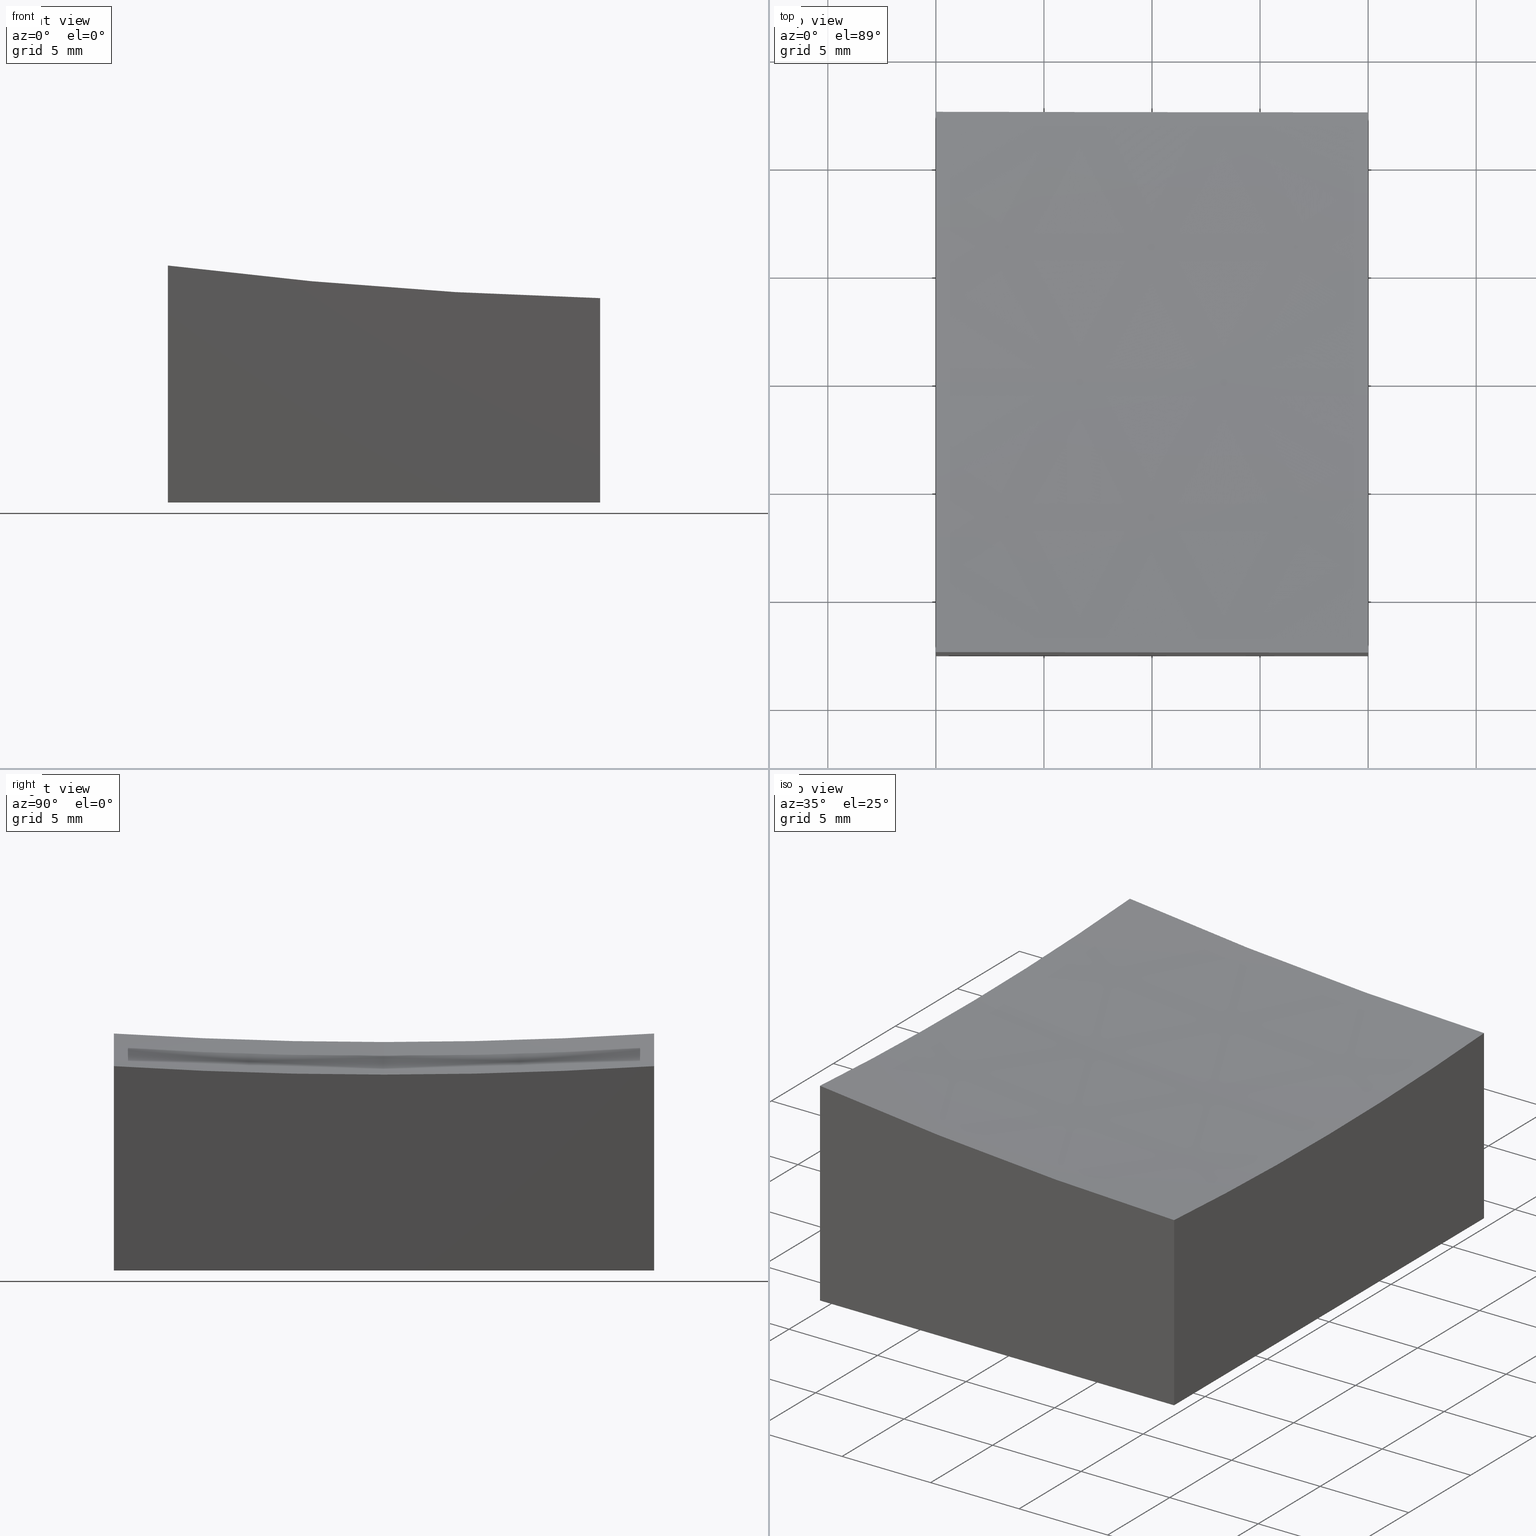
[diagram: canonical four-view strip — front | top / right | iso, engineering-drawing reading convention]
A machine part, canonical four-view strip (front | top / right | iso — engineering-drawing reading convention). The complete STEP part file that produces these views, byte-faithful:
ISO-10303-21;
HEADER;
FILE_DESCRIPTION (( 'STEP AP203' ),
    '1' );
FILE_NAME ('270645.step',
    '2024-12-24T02:22:06',
    ( '' ),
    ( '' ),
    'SwSTEP 2.0',
    'SolidWorks 2020',
    '' );
FILE_SCHEMA (( 'CONFIG_CONTROL_DESIGN' ));
ENDSEC;

DATA;
#1 = APPROVAL ( #115, 'δָ��' ) ;
#2 = DATE_AND_TIME ( #134, #228 ) ;
#3 = DATE_AND_TIME ( #27, #17 ) ;
#4 = DIRECTION ( 'NONE',  ( 0.000000000000000000, -0.000000000000000000, 1.000000000000000000 ) ) ;
#5 = AXIS2_PLACEMENT_3D ( 'NONE', #67, #221, #7 ) ;
#6 = CARTESIAN_POINT ( 'NONE',  ( 15.00000000000002665, 0.000000000000000000, 199.0000000000000000 ) ) ;
#7 = DIRECTION ( 'NONE',  ( 1.000000000000000000, 1.224646799147353207E-16, 0.000000000000000000 ) ) ;
#8 =( NAMED_UNIT ( * ) PLANE_ANGLE_UNIT ( ) SI_UNIT ( $, .RADIAN. ) );
#9 = APPLICATION_PROTOCOL_DEFINITION ( 'international standard', 'config_control_design', 1994, #126 ) ;
#10 = CIRCLE ( 'NONE', #274, 199.6089927833914146 ) ;
#11 = CARTESIAN_POINT ( 'NONE',  ( 10.00000000000000178, -12.50000000000000000, 10.00000000000000000 ) ) ;
#12 = ORIENTED_EDGE ( 'NONE', *, *, #13, .T. ) ;
#13 = EDGE_CURVE ( 'NONE', #118, #121, #237, .T. ) ;
#14 = EDGE_CURVE ( 'NONE', #52, #75, #53, .T. ) ;
#15 = EDGE_LOOP ( 'NONE', ( #100, #243, #159, #222 ) ) ;
#16 = CIRCLE ( 'NONE', #268, 199.6089927833914146 ) ;
#17 = LOCAL_TIME ( 10, 22, 6.000000000000000000, #64 ) ;
#18 = CARTESIAN_POINT ( 'NONE',  ( 10.00000000000000178, -12.50000000000000000, 10.00000000000000000 ) ) ;
#19 = LINE ( 'NONE', #275, #250 ) ;
#20 = LINE ( 'NONE', #253, #160 ) ;
#21 = CIRCLE ( 'NONE', #5, 200.0000000000000000 ) ;
#22 = CARTESIAN_POINT ( 'NONE',  ( -9.999999999999998224, -12.50000000000000355, 10.00000000000000000 ) ) ;
#23 = APPROVAL_STATUS ( 'not_yet_approved' ) ;
#24 = CARTESIAN_POINT ( 'NONE',  ( 10.00000000000000178, 0.000000000000000000, 199.0000000000000000 ) ) ;
#25 = AXIS2_PLACEMENT_3D ( 'NONE', #114, #4, #257 ) ;
#26 = DATE_AND_TIME ( #216, #201 ) ;
#27 = CALENDAR_DATE ( 2024, 24, 12 ) ;
#28 = FACE_OUTER_BOUND ( 'NONE', #15, .T. ) ;
#29 = PERSON_AND_ORGANIZATION ( #76, #90 ) ;
#30 = EDGE_LOOP ( 'NONE', ( #264, #79, #164, #117 ) ) ;
#31 = ADVANCED_FACE ( 'NONE', ( #133 ), #215, .F. ) ;
#32 = CIRCLE ( 'NONE', #217, 198.4313483298443259 ) ;
#33 = ORIENTED_EDGE ( 'NONE', *, *, #214, .T. ) ;
#34 = ORIENTED_EDGE ( 'NONE', *, *, #137, .F. ) ;
#35 = PRODUCT_RELATED_PRODUCT_CATEGORY ( 'detail', '', ( #259 ) ) ;
#36 = PRODUCT_DEFINITION_FORMATION_WITH_SPECIFIED_SOURCE ( '�κ�', '', #259, .NOT_KNOWN. ) ;
#37 = DIRECTION ( 'NONE',  ( 1.000000000000000000, 0.000000000000000000, 0.000000000000000000 ) ) ;
#38 = DIRECTION ( 'NONE',  ( -0.000000000000000000, -0.000000000000000000, -1.000000000000000000 ) ) ;
#39 = DIRECTION ( 'NONE',  ( 0.000000000000000000, 0.000000000000000000, -1.000000000000000000 ) ) ;
#40 = ADVANCED_FACE ( 'NONE', ( #173 ), #69, .F. ) ;
#41 = AXIS2_PLACEMENT_3D ( 'NONE', #229, #84, #57 ) ;
#42 = CC_DESIGN_PERSON_AND_ORGANIZATION_ASSIGNMENT ( #211, #171, ( #36 ) ) ;
#43 = DATE_AND_TIME ( #238, #212 ) ;
#44 = CARTESIAN_POINT ( 'NONE',  ( 10.00000000000000178, -12.50000000000000000, -10.00000000000000000 ) ) ;
#45 = CALENDAR_DATE ( 2024, 24, 12 ) ;
#46 = DIRECTION ( 'NONE',  ( 1.000000000000000000, 1.734723475976807094E-16, 0.000000000000000000 ) ) ;
#47 = AXIS2_PLACEMENT_3D ( 'NONE', #153, #239, #46 ) ;
#48 = COORDINATED_UNIVERSAL_TIME_OFFSET ( 8, 0, .AHEAD. ) ;
#49 = ADVANCED_FACE ( 'NONE', ( #28 ), #172, .F. ) ;
#50 = PERSON_AND_ORGANIZATION ( #76, #90 ) ;
#51 = ORIENTED_EDGE ( 'NONE', *, *, #158, .F. ) ;
#52 = VERTEX_POINT ( 'NONE', #91 ) ;
#53 = CIRCLE ( 'NONE', #277, 199.9374902313220730 ) ;
#54 = UNCERTAINTY_MEASURE_WITH_UNIT (LENGTH_MEASURE( 1.000000000000000082E-05 ), #116, 'distance_accuracy_value', 'NONE');
#55 = ORIENTED_EDGE ( 'NONE', *, *, #93, .T. ) ;
#56 = VERTEX_POINT ( 'NONE', #66 ) ;
#57 = DIRECTION ( 'NONE',  ( 0.000000000000000000, 0.000000000000000000, -1.000000000000000000 ) ) ;
#58 = SECURITY_CLASSIFICATION ( '', '', #213 ) ;
#59 = DIRECTION ( 'NONE',  ( 1.000000000000000000, 0.000000000000000000, 0.000000000000000000 ) ) ;
#60 = LINE ( 'NONE', #252, #81 ) ;
#61 = EDGE_CURVE ( 'NONE', #198, #56, #152, .T. ) ;
#62 = CARTESIAN_POINT ( 'NONE',  ( -10.00000000000000000, -12.50000000000000355, 0.9627560280642266655 ) ) ;
#63 = SPHERICAL_SURFACE ( 'NONE', #196, 200.0000000000000000 ) ;
#64 = COORDINATED_UNIVERSAL_TIME_OFFSET ( 8, 0, .AHEAD. ) ;
#65 = VECTOR ( 'NONE', #94, 1000.000000000000000 ) ;
#66 = CARTESIAN_POINT ( 'NONE',  ( -9.999999999999998224, 12.49999999999999645, -10.00000000000000000 ) ) ;
#67 = CARTESIAN_POINT ( 'NONE',  ( 15.00000000000002665, 0.000000000000000000, 199.0000000000000000 ) ) ;
#68 = EDGE_CURVE ( 'NONE', #121, #198, #20, .T. ) ;
#69 = PLANE ( 'NONE',  #47 ) ;
#70 = FACE_OUTER_BOUND ( 'NONE', #184, .T. ) ;
#71 = APPROVAL_DATE_TIME ( #2, #83 ) ;
#72 = MECHANICAL_CONTEXT ( 'NONE', #126, 'mechanical' ) ;
#73 = PERSON_AND_ORGANIZATION ( #76, #90 ) ;
#74 = APPLICATION_PROTOCOL_DEFINITION ( 'international standard', 'config_control_design', 1994, #193 ) ;
#75 = VERTEX_POINT ( 'NONE', #123 ) ;
#76 = PERSON ( 'δָ��', 'δָ��', 'δָ��', ('δָ��'), ('δָ��'), ('δָ��') ) ;
#77 = EDGE_LOOP ( 'NONE', ( #245, #199, #34, #143 ) ) ;
#78 =( GEOMETRIC_REPRESENTATION_CONTEXT ( 3 ) GLOBAL_UNCERTAINTY_ASSIGNED_CONTEXT ( ( #54 ) ) GLOBAL_UNIT_ASSIGNED_CONTEXT ( ( #116, #8, #220 ) ) REPRESENTATION_CONTEXT ( 'NONE', 'WORKASPACE' ) );
#79 = ORIENTED_EDGE ( 'NONE', *, *, #108, .T. ) ;
#80 = DIRECTION ( 'NONE',  ( -0.000000000000000000, -1.000000000000000000, -0.000000000000000000 ) ) ;
#81 = VECTOR ( 'NONE', #204, 1000.000000000000000 ) ;
#82 = PLANE ( 'NONE',  #41 ) ;
#83 = APPROVAL ( #258, 'δָ��' ) ;
#84 = DIRECTION ( 'NONE',  ( 1.000000000000000000, 0.000000000000000000, 0.000000000000000000 ) ) ;
#85 = DIRECTION ( 'NONE',  ( 1.000000000000000000, 0.000000000000000000, -1.387778780781445676E-16 ) ) ;
#86 = AXIS2_PLACEMENT_3D ( 'NONE', #249, #59, #146 ) ;
#87 = DATE_TIME_ROLE ( 'classification_date' ) ;
#88 = PERSON_AND_ORGANIZATION ( #76, #90 ) ;
#89 = ADVANCED_FACE ( 'NONE', ( #188 ), #63, .F. ) ;
#90 = ORGANIZATION ( 'δָ��', 'δָ��', '' ) ;
#91 = CARTESIAN_POINT ( 'NONE',  ( 10.00000000000000178, -6.123233995736765296E-16, -0.9374902313220578876 ) ) ;
#92 = CC_DESIGN_SECURITY_CLASSIFICATION ( #58, ( #36 ) ) ;
#93 = EDGE_CURVE ( 'NONE', #267, #56, #60, .T. ) ;
#94 = DIRECTION ( 'NONE',  ( 1.000000000000000000, 1.734723475976807094E-16, -0.000000000000000000 ) ) ;
#95 = CARTESIAN_POINT ( 'NONE',  ( 0.000000000000000000, 0.000000000000000000, 0.000000000000000000 ) ) ;
#96 = APPROVAL_ROLE ( '' ) ;
#97 = MANIFOLD_SOLID_BREP ( '�г�-��ת8', #233 ) ;
#98 = ORIENTED_EDGE ( 'NONE', *, *, #206, .F. ) ;
#99 = EDGE_LOOP ( 'NONE', ( #101, #33, #248, #55, #269 ) ) ;
#100 = ORIENTED_EDGE ( 'NONE', *, *, #205, .F. ) ;
#101 = ORIENTED_EDGE ( 'NONE', *, *, #189, .F. ) ;
#102 = CARTESIAN_POINT ( 'NONE',  ( 10.00000000000000178, 0.000000000000000000, 199.0000000000000000 ) ) ;
#103 = DIRECTION ( 'NONE',  ( -1.000000000000000000, -1.738121566355747637E-16, 0.000000000000000000 ) ) ;
#104 = CIRCLE ( 'NONE', #86, 198.4313483298443259 ) ;
#105 = DIRECTION ( 'NONE',  ( 0.000000000000000000, 1.000000000000000000, 0.000000000000000000 ) ) ;
#106 = CARTESIAN_POINT ( 'NONE',  ( -9.999999999999998224, -12.50000000000000355, -10.00000000000000000 ) ) ;
#107 = CC_DESIGN_APPROVAL ( #83, ( #36 ) ) ;
#108 = EDGE_CURVE ( 'NONE', #267, #246, #16, .T. ) ;
#109 = DIRECTION ( 'NONE',  ( 0.000000000000000000, -1.000000000000000000, -0.000000000000000000 ) ) ;
#110 = LOCAL_TIME ( 10, 22, 6.000000000000000000, #242 ) ;
#111 = DIRECTION ( 'NONE',  ( -1.000000000000000000, 0.000000000000000000, 0.000000000000000000 ) ) ;
#112 = DIRECTION ( 'NONE',  ( -1.000000000000000000, -1.734723475976807094E-16, 0.000000000000000000 ) ) ;
#113 = APPROVAL_DATE_TIME ( #3, #210 ) ;
#114 = CARTESIAN_POINT ( 'NONE',  ( 0.000000000000000000, 0.000000000000000000, -10.00000000000000000 ) ) ;
#115 = APPROVAL_STATUS ( 'not_yet_approved' ) ;
#116 =( LENGTH_UNIT ( ) NAMED_UNIT ( * ) SI_UNIT ( .MILLI., .METRE. ) );
#117 = ORIENTED_EDGE ( 'NONE', *, *, #61, .T. ) ;
#118 = VERTEX_POINT ( 'NONE', #106 ) ;
#119 = PRODUCT_DEFINITION ( 'δ֪', '', #36, #225 ) ;
#120 = ORIENTED_EDGE ( 'NONE', *, *, #158, .T. ) ;
#121 = VERTEX_POINT ( 'NONE', #149 ) ;
#122 = CARTESIAN_POINT ( 'NONE',  ( 10.00000000000000178, 12.50000000000000000, -10.00000000000000000 ) ) ;
#123 = CARTESIAN_POINT ( 'NONE',  ( 10.00000000000000178, -12.50000000000000000, -0.5463605280738026426 ) ) ;
#124 = FACE_OUTER_BOUND ( 'NONE', #99, .T. ) ;
#125 = CARTESIAN_POINT ( 'NONE',  ( 15.00000000000002842, -12.49999999999999822, 199.0000000000000000 ) ) ;
#126 = APPLICATION_CONTEXT ( 'configuration controlled 3d designs of mechanical parts and assemblies' ) ;
#127 = APPROVAL_ROLE ( '' ) ;
#128 = CC_DESIGN_DATE_AND_TIME_ASSIGNMENT ( #26, #174, ( #119 ) ) ;
#129 = ORIENTED_EDGE ( 'NONE', *, *, #141, .T. ) ;
#130 = PERSON_AND_ORGANIZATION_ROLE ( 'design_owner' ) ;
#131 = PERSON_AND_ORGANIZATION ( #76, #90 ) ;
#132 = VECTOR ( 'NONE', #144, 1000.000000000000000 ) ;
#133 = FACE_OUTER_BOUND ( 'NONE', #226, .T. ) ;
#134 = CALENDAR_DATE ( 2024, 24, 12 ) ;
#135 = CC_DESIGN_PERSON_AND_ORGANIZATION_ASSIGNMENT ( #218, #154, ( #36 ) ) ;
#136 = DIRECTION ( 'NONE',  ( 1.000000000000000000, 0.000000000000000000, 0.000000000000000000 ) ) ;
#137 = EDGE_CURVE ( 'NONE', #246, #52, #182, .T. ) ;
#138 = CARTESIAN_POINT ( 'NONE',  ( -9.999999999999996447, 12.49999999999999645, 0.9627560280642266655 ) ) ;
#139 = ORIENTED_EDGE ( 'NONE', *, *, #189, .T. ) ;
#140 = VERTEX_POINT ( 'NONE', #62 ) ;
#141 = EDGE_CURVE ( 'NONE', #75, #121, #19, .T. ) ;
#142 = EDGE_LOOP ( 'NONE', ( #98, #183, #181, #129, #157 ) ) ;
#143 = ORIENTED_EDGE ( 'NONE', *, *, #108, .F. ) ;
#144 = DIRECTION ( 'NONE',  ( -0.000000000000000000, -0.000000000000000000, -1.000000000000000000 ) ) ;
#145 = VECTOR ( 'NONE', #80, 1000.000000000000000 ) ;
#146 = DIRECTION ( 'NONE',  ( 0.000000000000000000, 0.000000000000000000, -1.000000000000000000 ) ) ;
#147 = DIRECTION ( 'NONE',  ( 0.000000000000000000, -1.000000000000000000, -0.000000000000000000 ) ) ;
#148 = FACE_OUTER_BOUND ( 'NONE', #142, .T. ) ;
#149 = CARTESIAN_POINT ( 'NONE',  ( 10.00000000000000178, -12.50000000000000000, -10.00000000000000000 ) ) ;
#150 = AXIS2_PLACEMENT_3D ( 'NONE', #18, #207, #185 ) ;
#151 = SHAPE_DEFINITION_REPRESENTATION ( #262, #156 ) ;
#152 = LINE ( 'NONE', #169, #223 ) ;
#153 = CARTESIAN_POINT ( 'NONE',  ( 10.00000000000000178, 12.50000000000000000, 10.00000000000000000 ) ) ;
#154 = PERSON_AND_ORGANIZATION_ROLE ( 'design_supplier' ) ;
#155 = CARTESIAN_POINT ( 'NONE',  ( -9.999999999999996447, -3.061616997868382648E-15, 0.5686516701556842968 ) ) ;
#156 = ADVANCED_BREP_SHAPE_REPRESENTATION ( '270645', ( #97, #170 ), #78 ) ;
#157 = ORIENTED_EDGE ( 'NONE', *, *, #68, .T. ) ;
#158 = EDGE_CURVE ( 'NONE', #75, #140, #10, .T. ) ;
#159 = ORIENTED_EDGE ( 'NONE', *, *, #68, .F. ) ;
#160 = VECTOR ( 'NONE', #105, 1000.000000000000000 ) ;
#161 = ORIENTED_EDGE ( 'NONE', *, *, #266, .F. ) ;
#162 = ORIENTED_EDGE ( 'NONE', *, *, #14, .F. ) ;
#163 = DIRECTION ( 'NONE',  ( -1.734723475976807094E-16, 1.000000000000000000, 0.000000000000000000 ) ) ;
#164 = ORIENTED_EDGE ( 'NONE', *, *, #206, .T. ) ;
#165 = CARTESIAN_POINT ( 'NONE',  ( 10.00000000000000178, 12.50000000000000000, 10.00000000000000000 ) ) ;
#166 = DIRECTION ( 'NONE',  ( 0.000000000000000000, 0.000000000000000000, 1.000000000000000000 ) ) ;
#167 = CARTESIAN_POINT ( 'NONE',  ( 15.00000000000002665, 0.000000000000000000, 199.0000000000000000 ) ) ;
#168 = CC_DESIGN_PERSON_AND_ORGANIZATION_ASSIGNMENT ( #180, #130, ( #259 ) ) ;
#169 = CARTESIAN_POINT ( 'NONE',  ( 10.00000000000000178, 12.50000000000000000, -10.00000000000000000 ) ) ;
#170 = AXIS2_PLACEMENT_3D ( 'NONE', #95, #265, #136 ) ;
#171 = PERSON_AND_ORGANIZATION_ROLE ( 'creator' ) ;
#172 = PLANE ( 'NONE',  #25 ) ;
#173 = FACE_OUTER_BOUND ( 'NONE', #30, .T. ) ;
#174 = DATE_TIME_ROLE ( 'creation_date' ) ;
#175 = PERSON_AND_ORGANIZATION_ROLE ( 'classification_officer' ) ;
#176 = CARTESIAN_POINT ( 'NONE',  ( 10.00000000000000178, 12.50000000000000000, -0.5463605280738026426 ) ) ;
#177 = AXIS2_PLACEMENT_3D ( 'NONE', #11, #263, #112 ) ;
#178 = APPROVAL_DATE_TIME ( #195, #1 ) ;
#179 = CC_DESIGN_PERSON_AND_ORGANIZATION_ASSIGNMENT ( #73, #194, ( #119 ) ) ;
#180 = PERSON_AND_ORGANIZATION ( #76, #90 ) ;
#181 = ORIENTED_EDGE ( 'NONE', *, *, #14, .T. ) ;
#182 = CIRCLE ( 'NONE', #187, 199.9374902313220730 ) ;
#183 = ORIENTED_EDGE ( 'NONE', *, *, #137, .T. ) ;
#184 = EDGE_LOOP ( 'NONE', ( #202, #120, #139, #12 ) ) ;
#185 = DIRECTION ( 'NONE',  ( 0.000000000000000000, 0.000000000000000000, 1.000000000000000000 ) ) ;
#186 = CARTESIAN_POINT ( 'NONE',  ( 15.00000000000002487, 12.50000000000000178, 199.0000000000000000 ) ) ;
#187 = AXIS2_PLACEMENT_3D ( 'NONE', #102, #209, #166 ) ;
#188 = FACE_OUTER_BOUND ( 'NONE', #77, .T. ) ;
#189 = EDGE_CURVE ( 'NONE', #140, #118, #231, .T. ) ;
#190 = CARTESIAN_POINT ( 'NONE',  ( -9.999999999999998224, -12.50000000000000355, -10.00000000000000000 ) ) ;
#191 = APPROVAL_PERSON_ORGANIZATION ( #29, #83, #240 ) ;
#192 = DIRECTION ( 'NONE',  ( 0.000000000000000000, 0.000000000000000000, 1.000000000000000000 ) ) ;
#193 = APPLICATION_CONTEXT ( 'configuration controlled 3d designs of mechanical parts and assemblies' ) ;
#194 = PERSON_AND_ORGANIZATION_ROLE ( 'creator' ) ;
#195 = DATE_AND_TIME ( #45, #110 ) ;
#196 = AXIS2_PLACEMENT_3D ( 'NONE', #167, #147, #85 ) ;
#197 = PLANE ( 'NONE',  #177 ) ;
#198 = VERTEX_POINT ( 'NONE', #122 ) ;
#199 = ORIENTED_EDGE ( 'NONE', *, *, #266, .T. ) ;
#200 = ORIENTED_EDGE ( 'NONE', *, *, #214, .F. ) ;
#201 = LOCAL_TIME ( 10, 22, 6.000000000000000000, #241 ) ;
#202 = ORIENTED_EDGE ( 'NONE', *, *, #141, .F. ) ;
#203 = PLANE ( 'NONE',  #150 ) ;
#204 = DIRECTION ( 'NONE',  ( -0.000000000000000000, -0.000000000000000000, -1.000000000000000000 ) ) ;
#205 = EDGE_CURVE ( 'NONE', #56, #118, #273, .T. ) ;
#206 = EDGE_CURVE ( 'NONE', #246, #198, #251, .T. ) ;
#207 = DIRECTION ( 'NONE',  ( -1.000000000000000000, 0.000000000000000000, 0.000000000000000000 ) ) ;
#208 = AXIS2_PLACEMENT_3D ( 'NONE', #6, #109, #219 ) ;
#209 = DIRECTION ( 'NONE',  ( -1.000000000000000000, 0.000000000000000000, 0.000000000000000000 ) ) ;
#210 = APPROVAL ( #23, 'δָ��' ) ;
#211 = PERSON_AND_ORGANIZATION ( #76, #90 ) ;
#212 = LOCAL_TIME ( 10, 22, 6.000000000000000000, #255 ) ;
#213 = SECURITY_CLASSIFICATION_LEVEL ( 'unclassified' ) ;
#214 = EDGE_CURVE ( 'NONE', #140, #270, #32, .T. ) ;
#215 = SPHERICAL_SURFACE ( 'NONE', #208, 200.0000000000000000 ) ;
#216 = CALENDAR_DATE ( 2024, 24, 12 ) ;
#217 = AXIS2_PLACEMENT_3D ( 'NONE', #247, #37, #39 ) ;
#218 = PERSON_AND_ORGANIZATION ( #76, #90 ) ;
#219 = DIRECTION ( 'NONE',  ( 1.000000000000000000, 0.000000000000000000, -1.387778780781445676E-16 ) ) ;
#220 =( NAMED_UNIT ( * ) SI_UNIT ( $, .STERADIAN. ) SOLID_ANGLE_UNIT ( ) );
#221 = DIRECTION ( 'NONE',  ( 1.224646799147353207E-16, -1.000000000000000000, -1.487096486582537186E-32 ) ) ;
#222 = ORIENTED_EDGE ( 'NONE', *, *, #13, .F. ) ;
#223 = VECTOR ( 'NONE', #232, 1000.000000000000000 ) ;
#224 = CC_DESIGN_APPROVAL ( #210, ( #58 ) ) ;
#225 = DESIGN_CONTEXT ( 'detailed design', #193, 'design' ) ;
#226 = EDGE_LOOP ( 'NONE', ( #161, #200, #51, #162 ) ) ;
#227 = DIRECTION ( 'NONE',  ( -0.000000000000000000, -0.000000000000000000, -1.000000000000000000 ) ) ;
#228 = LOCAL_TIME ( 10, 22, 6.000000000000000000, #48 ) ;
#229 = CARTESIAN_POINT ( 'NONE',  ( -9.999999999999998224, -12.50000000000000355, 10.00000000000000000 ) ) ;
#230 = ADVANCED_FACE ( 'NONE', ( #124 ), #82, .F. ) ;
#231 = LINE ( 'NONE', #22, #261 ) ;
#232 = DIRECTION ( 'NONE',  ( -1.000000000000000000, -1.734723475976807094E-16, 0.000000000000000000 ) ) ;
#233 = CLOSED_SHELL ( 'NONE', ( #89, #230, #256, #235, #40, #49, #31 ) ) ;
#234 = APPROVAL_PERSON_ORGANIZATION ( #131, #210, #127 ) ;
#235 = ADVANCED_FACE ( 'NONE', ( #148 ), #203, .F. ) ;
#236 = EDGE_CURVE ( 'NONE', #270, #267, #104, .T. ) ;
#237 = LINE ( 'NONE', #44, #65 ) ;
#238 = CALENDAR_DATE ( 2024, 24, 12 ) ;
#239 = DIRECTION ( 'NONE',  ( 1.734723475976807094E-16, -1.000000000000000000, 0.000000000000000000 ) ) ;
#240 = APPROVAL_ROLE ( '' ) ;
#241 = COORDINATED_UNIVERSAL_TIME_OFFSET ( 8, 0, .AHEAD. ) ;
#242 = COORDINATED_UNIVERSAL_TIME_OFFSET ( 8, 0, .AHEAD. ) ;
#243 = ORIENTED_EDGE ( 'NONE', *, *, #61, .F. ) ;
#244 = APPROVAL_PERSON_ORGANIZATION ( #50, #1, #96 ) ;
#245 = ORIENTED_EDGE ( 'NONE', *, *, #236, .F. ) ;
#246 = VERTEX_POINT ( 'NONE', #176 ) ;
#247 = CARTESIAN_POINT ( 'NONE',  ( -9.999999999999998224, 0.000000000000000000, 199.0000000000000000 ) ) ;
#248 = ORIENTED_EDGE ( 'NONE', *, *, #236, .T. ) ;
#249 = CARTESIAN_POINT ( 'NONE',  ( -9.999999999999998224, 0.000000000000000000, 199.0000000000000000 ) ) ;
#250 = VECTOR ( 'NONE', #38, 1000.000000000000000 ) ;
#251 = LINE ( 'NONE', #165, #132 ) ;
#252 = CARTESIAN_POINT ( 'NONE',  ( -9.999999999999998224, 12.49999999999999645, 10.00000000000000000 ) ) ;
#253 = CARTESIAN_POINT ( 'NONE',  ( 10.00000000000000178, -12.50000000000000000, -10.00000000000000000 ) ) ;
#254 = CC_DESIGN_APPROVAL ( #1, ( #119 ) ) ;
#255 = COORDINATED_UNIVERSAL_TIME_OFFSET ( 8, 0, .AHEAD. ) ;
#256 = ADVANCED_FACE ( 'NONE', ( #70 ), #197, .F. ) ;
#257 = DIRECTION ( 'NONE',  ( 1.000000000000000000, 0.000000000000000000, -0.000000000000000000 ) ) ;
#258 = APPROVAL_STATUS ( 'not_yet_approved' ) ;
#259 = PRODUCT ( '270645', '270645', '', ( #72 ) ) ;
#260 = CC_DESIGN_DATE_AND_TIME_ASSIGNMENT ( #43, #87, ( #58 ) ) ;
#261 = VECTOR ( 'NONE', #227, 1000.000000000000000 ) ;
#262 = PRODUCT_DEFINITION_SHAPE ( 'NONE', 'NONE',  #119 ) ;
#263 = DIRECTION ( 'NONE',  ( -1.734723475976807094E-16, 1.000000000000000000, 0.000000000000000000 ) ) ;
#264 = ORIENTED_EDGE ( 'NONE', *, *, #93, .F. ) ;
#265 = DIRECTION ( 'NONE',  ( 0.000000000000000000, 0.000000000000000000, 1.000000000000000000 ) ) ;
#266 = EDGE_CURVE ( 'NONE', #270, #52, #21, .T. ) ;
#267 = VERTEX_POINT ( 'NONE', #138 ) ;
#268 = AXIS2_PLACEMENT_3D ( 'NONE', #186, #276, #271 ) ;
#269 = ORIENTED_EDGE ( 'NONE', *, *, #205, .T. ) ;
#270 = VERTEX_POINT ( 'NONE', #155 ) ;
#271 = DIRECTION ( 'NONE',  ( 1.000000000000000000, 1.738121566355747637E-16, 0.000000000000000000 ) ) ;
#272 = CC_DESIGN_PERSON_AND_ORGANIZATION_ASSIGNMENT ( #88, #175, ( #58 ) ) ;
#273 = LINE ( 'NONE', #190, #145 ) ;
#274 = AXIS2_PLACEMENT_3D ( 'NONE', #125, #163, #103 ) ;
#275 = CARTESIAN_POINT ( 'NONE',  ( 10.00000000000000178, -12.50000000000000000, 10.00000000000000000 ) ) ;
#276 = DIRECTION ( 'NONE',  ( 1.734723475976807094E-16, -1.000000000000000000, 0.000000000000000000 ) ) ;
#277 = AXIS2_PLACEMENT_3D ( 'NONE', #24, #111, #192 ) ;
ENDSEC;
END-ISO-10303-21;
